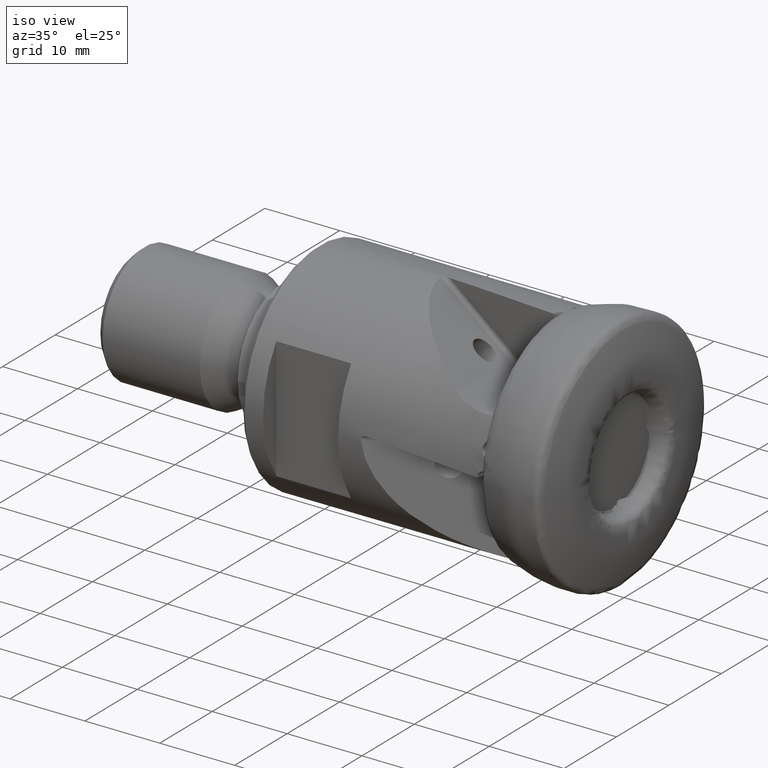
[diagram: clean part render]
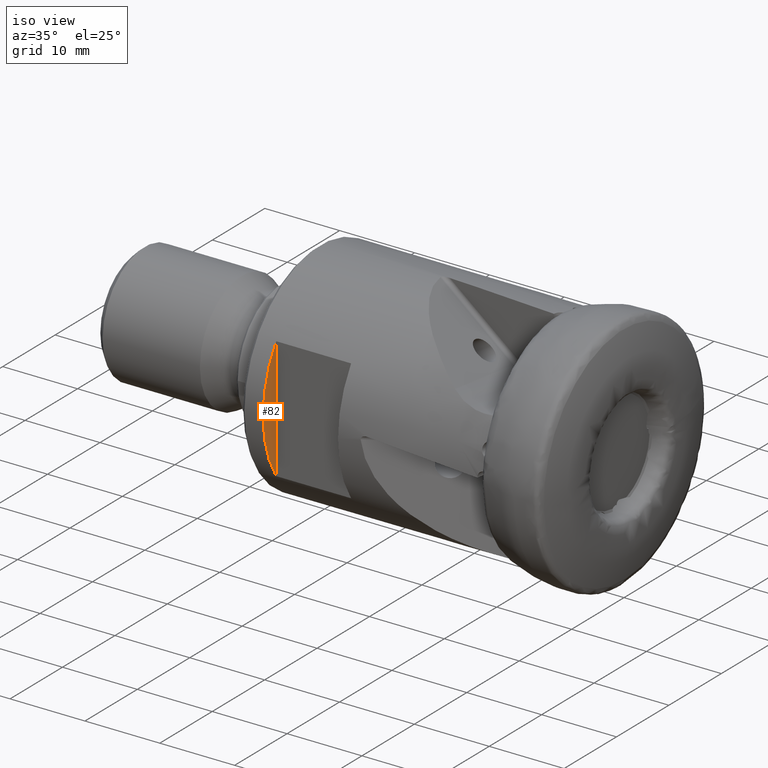
[diagram: same view with one face highlighted and labeled with its STEP entity id]
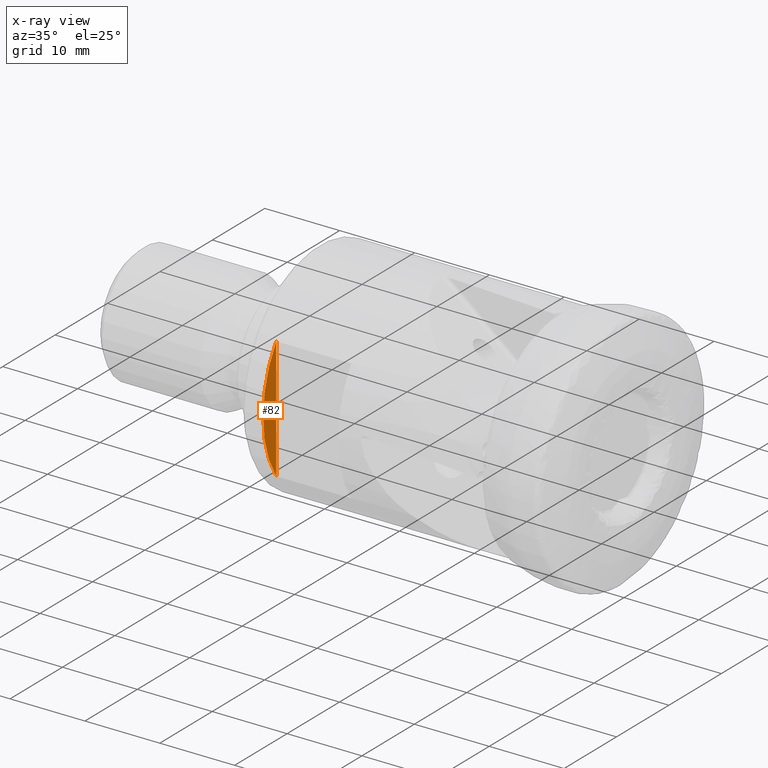
[diagram: x-ray of the same camera — body ghosted, the highlighted face saturated]
A machine part, iso view. The second image highlights one B-rep face of the part: STEP entity #82.
The next image is the same camera in x-ray: the body ghosted, the highlighted face saturated — about 0% of this face is hidden behind the body in this view.
In plain terms, the highlighted planar face has unit normal (-1, -0, 0).
Its self-contained STEP definition (entity closure, byte-faithful):
#82 = ADVANCED_FACE ( 'NONE', ( #4845 ), #2719, .F. ) ;
#220 = CIRCLE ( 'NONE', #3901, 14.50000000000000000 ) ;
#938 = CARTESIAN_POINT ( 'NONE',  ( -38.04999999999999000, -12.00000000000000500, 8.139410298049844200 ) ) ;
#1237 = DIRECTION ( 'NONE',  ( 1.000000000000000000, 1.387778780781447100E-015, 0.0000000000000000000 ) ) ;
#1260 = CARTESIAN_POINT ( 'NONE',  ( -38.04999999999999000, -12.00000000000000500, -15.00000000000000000 ) ) ;
#1434 = AXIS2_PLACEMENT_3D ( 'NONE', #1260, #4251, #2283 ) ;
#1588 = VERTEX_POINT ( 'NONE', #938 ) ;
#1853 = EDGE_CURVE ( 'NONE', #1588, #2876, #220, .T. ) ;
#2283 = DIRECTION ( 'NONE',  ( 1.387778780781447100E-015, -1.000000000000000000, 0.0000000000000000000 ) ) ;
#2719 = PLANE ( 'NONE',  #1434 ) ;
#2876 = VERTEX_POINT ( 'NONE', #6242 ) ;
#3036 = DIRECTION ( 'NONE',  ( -0.0000000000000000000, -0.0000000000000000000, 1.000000000000000000 ) ) ;
#3739 = LINE ( 'NONE', #6589, #5096 ) ;
#3901 = AXIS2_PLACEMENT_3D ( 'NONE', #4278, #1237, #4803 ) ;
#4251 = DIRECTION ( 'NONE',  ( -1.000000000000000000, -1.387778780781447100E-015, 0.0000000000000000000 ) ) ;
#4278 = CARTESIAN_POINT ( 'NONE',  ( -38.05000000000000400, -4.659781070755672700E-015, 0.0000000000000000000 ) ) ;
#4803 = DIRECTION ( 'NONE',  ( 1.435633221498047300E-015, -1.000000000000000000, 0.0000000000000000000 ) ) ;
#4845 = FACE_OUTER_BOUND ( 'NONE', #5324, .T. ) ;
#4990 = ORIENTED_EDGE ( 'NONE', *, *, #1853, .T. ) ;
#5096 = VECTOR ( 'NONE', #3036, 1000.000000000000000 ) ;
#5154 = EDGE_CURVE ( 'NONE', #2876, #1588, #3739, .T. ) ;
#5324 = EDGE_LOOP ( 'NONE', ( #4990, #6276 ) ) ;
#6242 = CARTESIAN_POINT ( 'NONE',  ( -38.04999999999999000, -12.00000000000000500, -8.139410298049844200 ) ) ;
#6276 = ORIENTED_EDGE ( 'NONE', *, *, #5154, .T. ) ;
#6589 = CARTESIAN_POINT ( 'NONE',  ( -38.04999999999999000, -12.00000000000000500, -15.00000000000000000 ) ) ;